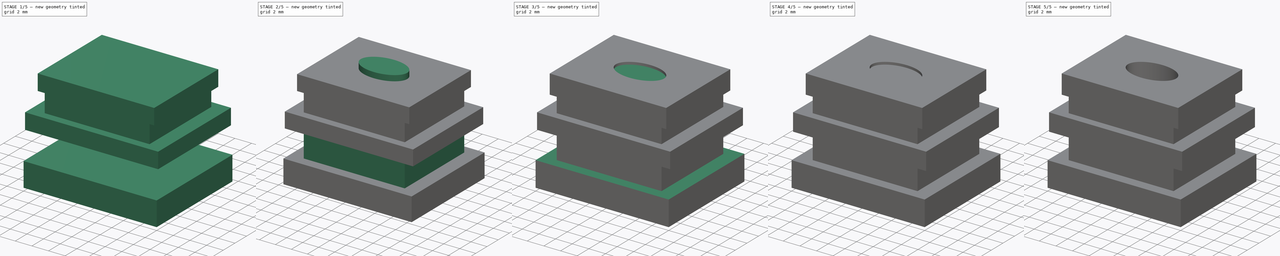
[diagram: build sequence overview — one tinted view per stage of 5, left to right]
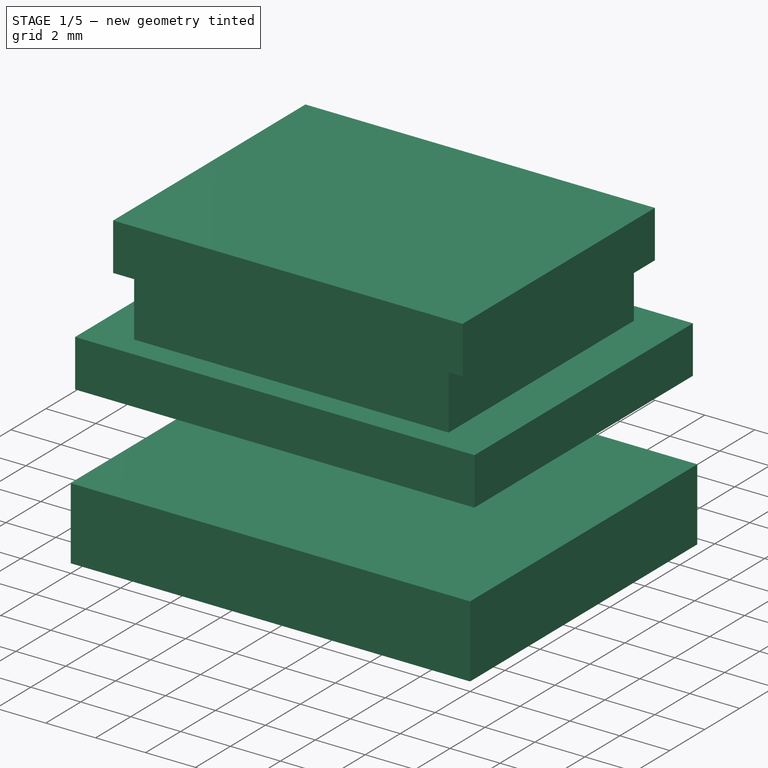
[diagram: stage 1 of 5 — iso view after this stage's code; geometry added in this stage tinted green]
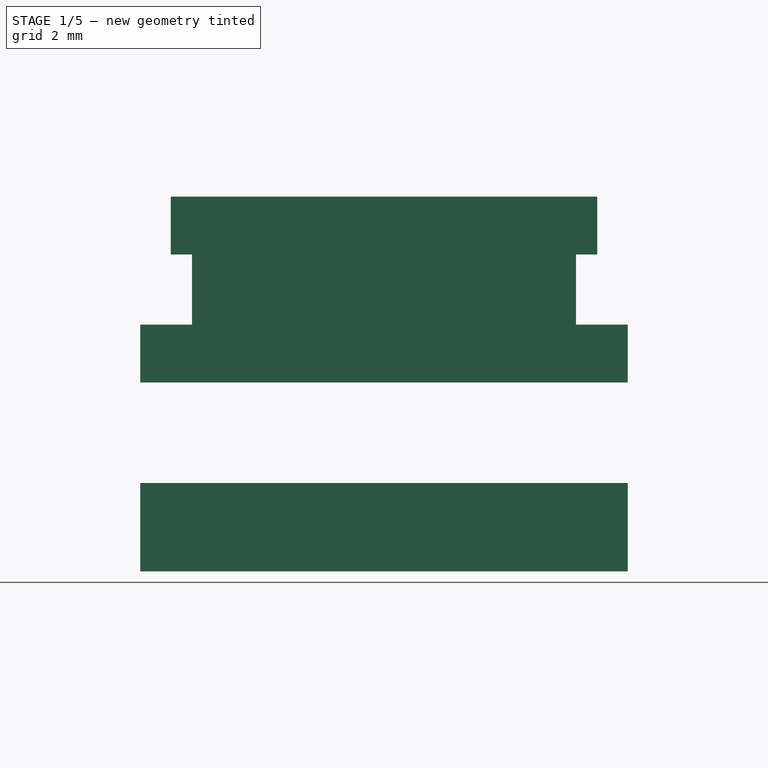
[diagram: stage 1 of 5 — front view after this stage's code; geometry added in this stage tinted green]
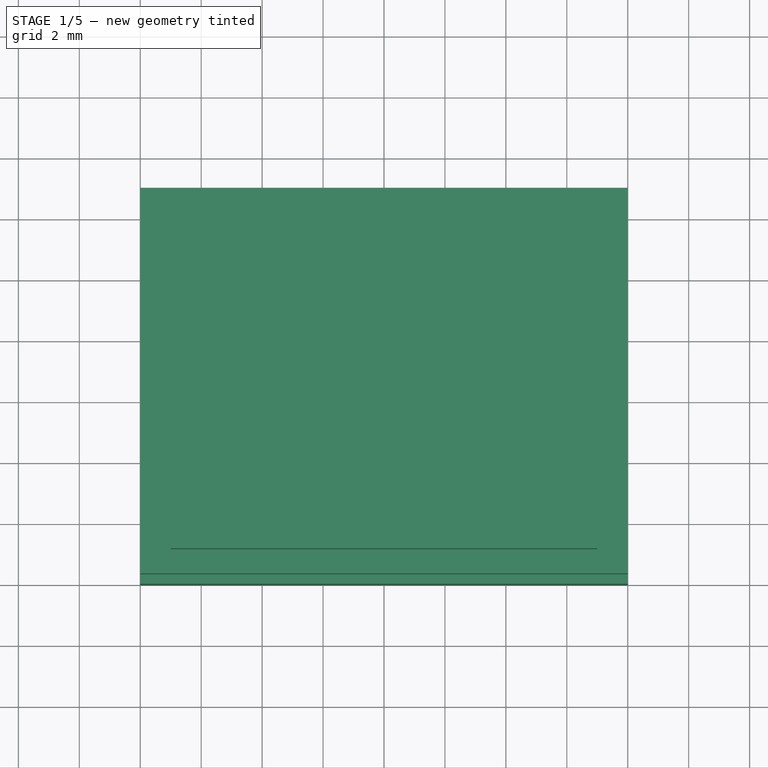
[diagram: stage 1 of 5 — top view after this stage's code; geometry added in this stage tinted green]
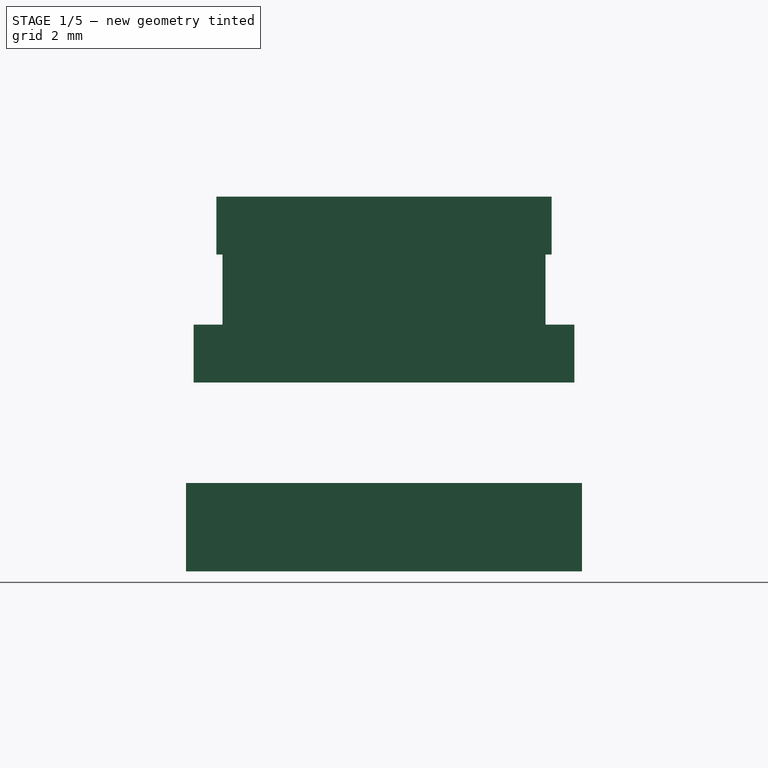
[diagram: stage 1 of 5 — right view after this stage's code; geometry added in this stage tinted green]
FCSTD DOCUMENT  (FreeCAD 0.19R0.19.2)
Label: 05
License: All rights reserved
LicenseURL: http://en.wikipedia.org/wiki/All_rights_reserved
objects: Part::Box×10, Sketcher::SketchObject×4, Part::Extrusion×2, Part::MultiFuse×2, Part::Cut×2, Part::Fillet×1, Part::Chamfer×1
note: 22 computed .brp shape members not serialized (recipe doc carries the construction recipe); baked Part::Feature solids carry a one-line shape summary decoded from their .brp

FEATURE [Part::Box] Box001  label="Cube001"
  AttacherType = Attacher::AttachEngine3D
  Height = 2.9
  Length = 16
  Width = 13
FEATURE [Part::Box] Box002  label="Cube002"
  AttacherType = Attacher::AttachEngine3D
  Height = 1.9
  Length = 16
  Placement = pos=(0,0.25,6.2) rot=(0,0,1;0rad)
  Width = 12.5
FEATURE [Part::Box] Box003  label="Cube003"
  AttacherType = Attacher::AttachEngine3D
  Height = 2.3
  Length = 12.6
  Placement = pos=(1.7,1.2,8.1) rot=(0,0,1;0rad)
  Width = 10.6
FEATURE [Part::Box] Box004  label="Cube004"
  AttacherType = Attacher::AttachEngine3D
  Height = 1.9
  Length = 14
  Placement = pos=(1,1,10.4) rot=(0,0,1;0rad)
  Width = 11
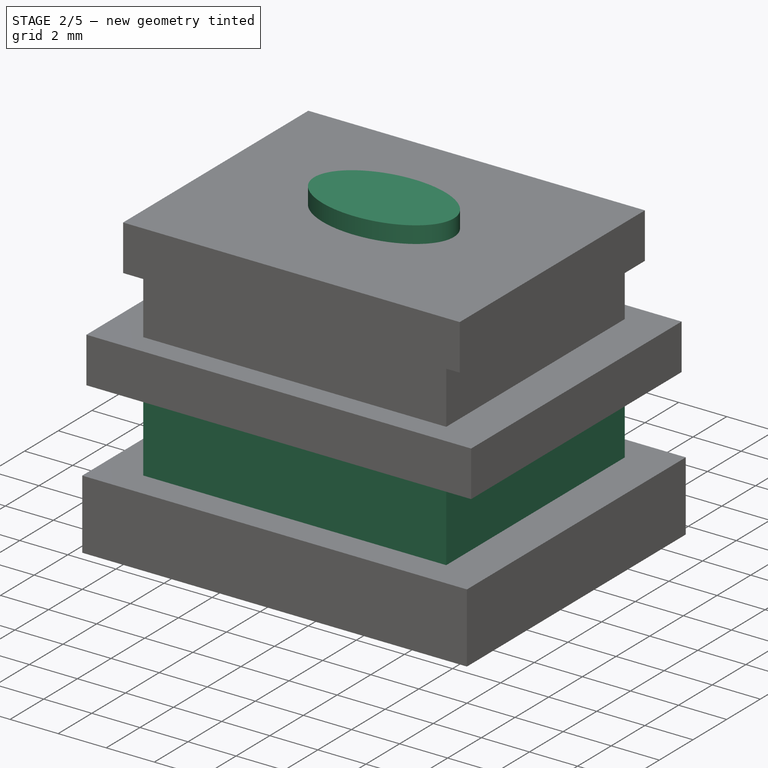
[diagram: stage 2 of 5 — iso view after this stage's code; geometry added in this stage tinted green]
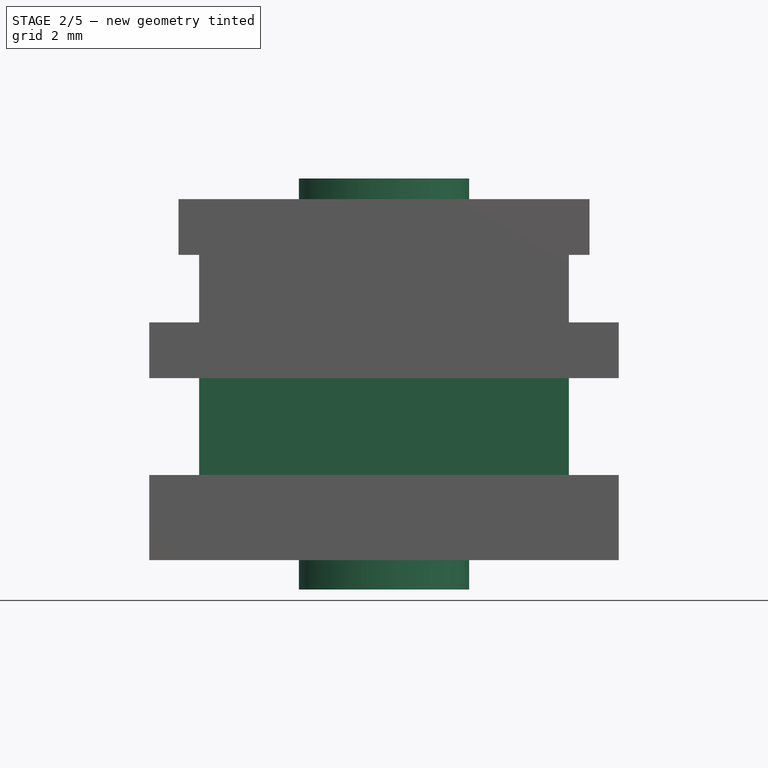
[diagram: stage 2 of 5 — front view after this stage's code; geometry added in this stage tinted green]
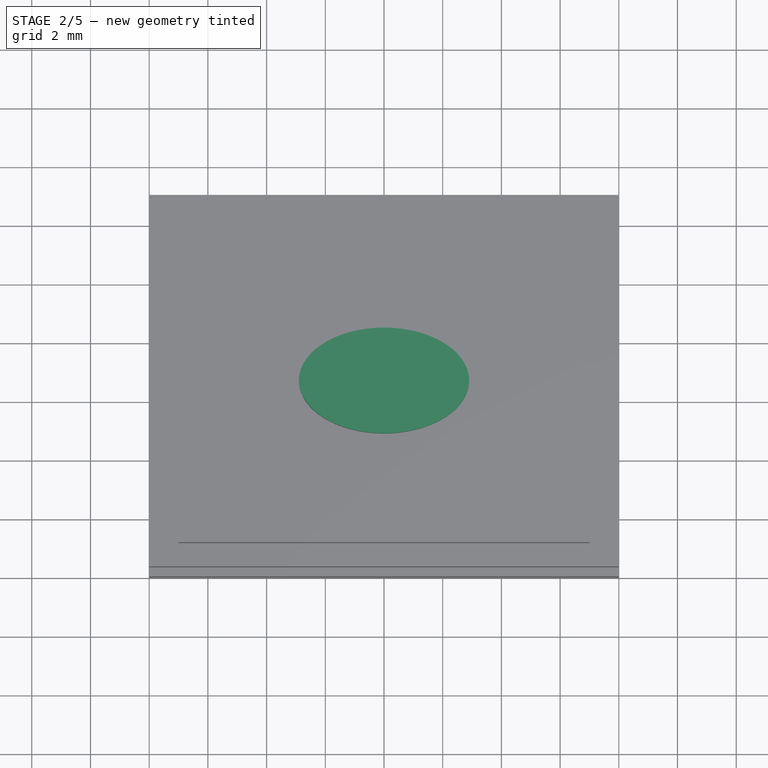
[diagram: stage 2 of 5 — top view after this stage's code; geometry added in this stage tinted green]
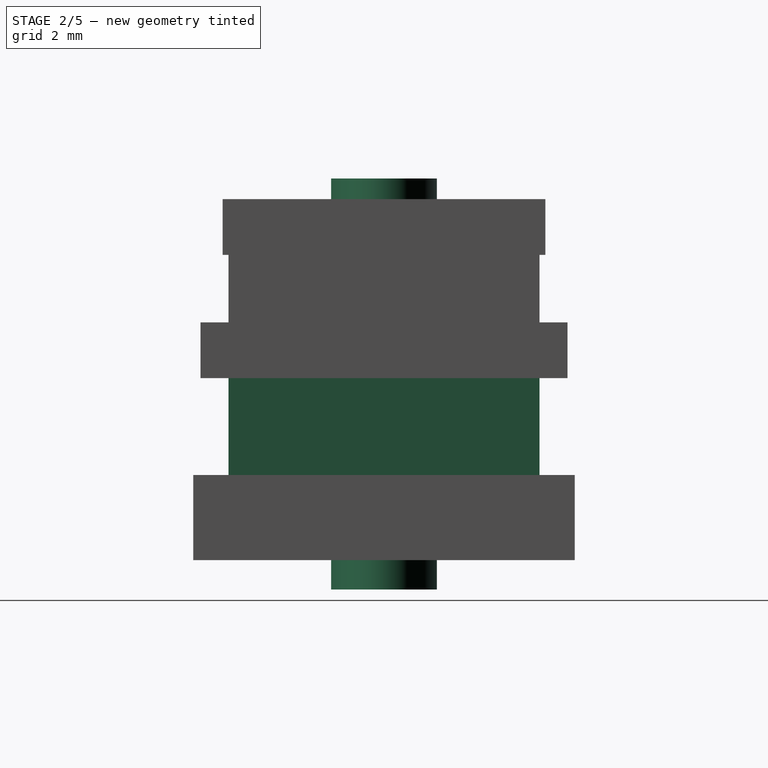
[diagram: stage 2 of 5 — right view after this stage's code; geometry added in this stage tinted green]
FEATURE [Sketcher::SketchObject] Sketch
  FullyConstrained = true
FEATURE [Part::Box] Box  label="Cube"
  AttacherType = Attacher::AttachEngine3D
  Height = 3.3
  Length = 12.6
  Placement = pos=(1.7,1.2,2.9) rot=(0,0,1;0rad)
  Width = 10.6
FEATURE [Sketcher::SketchObject] Sketch001
  FullyConstrained = true
  MapMode = 5
  Placement = pos=(0,0,12) rot=(0,0,1;0rad)
FEATURE [Sketcher::SketchObject] Sketch002
  FullyConstrained = true
  MapMode = 5
  Placement = pos=(0,0,12) rot=(0,0,1;0rad)
  sketch-geometry (5):
    g0: Ellipse CenterX=1e-16 CenterY=0 CenterZ=0 NormalX=0 NormalY=0 NormalZ=1 MajorRadius=2.9 MinorRadius=1.8 AngleXU=-3.14159
    g1: LineSegment StartX=-2.9 StartY=0 StartZ=0 EndX=2.9 EndY=0 EndZ=0
    g2: LineSegment StartX=1e-16 StartY=-1.8 StartZ=0 EndX=1e-16 EndY=1.8 EndZ=0
    g3: GeomPoint X=-2.27376 Y=0 Z=0
    g4: GeomPoint X=2.27376 Y=0 Z=0
  constraints (2):
    c: InternalAlignment(g1-g4 -> g0) x4
    c: Block(g0)
FEATURE [Part::Extrusion] Extrude
  Base = -> Sketch002
  Dir = (0,0,1)
  DirMode = 2
  FaceMakerClass = Part::FaceMakerBullseye
  LengthFwd = 14
  LengthRev = 0
  Placement = pos=(8,6.5,-13) rot=(0,0,1;0rad)
  Solid = true
  Symmetric = false
FEATURE [Part::MultiFuse] Fusion
  Shapes = -> [Box004,Box003,Box002,Box,Box001]
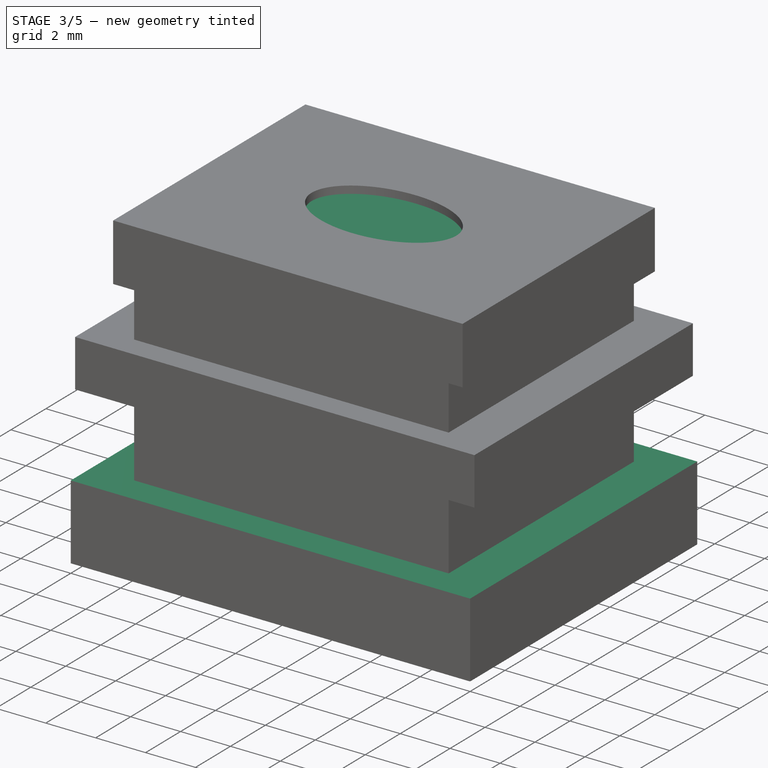
[diagram: stage 3 of 5 — iso view after this stage's code; geometry added in this stage tinted green]
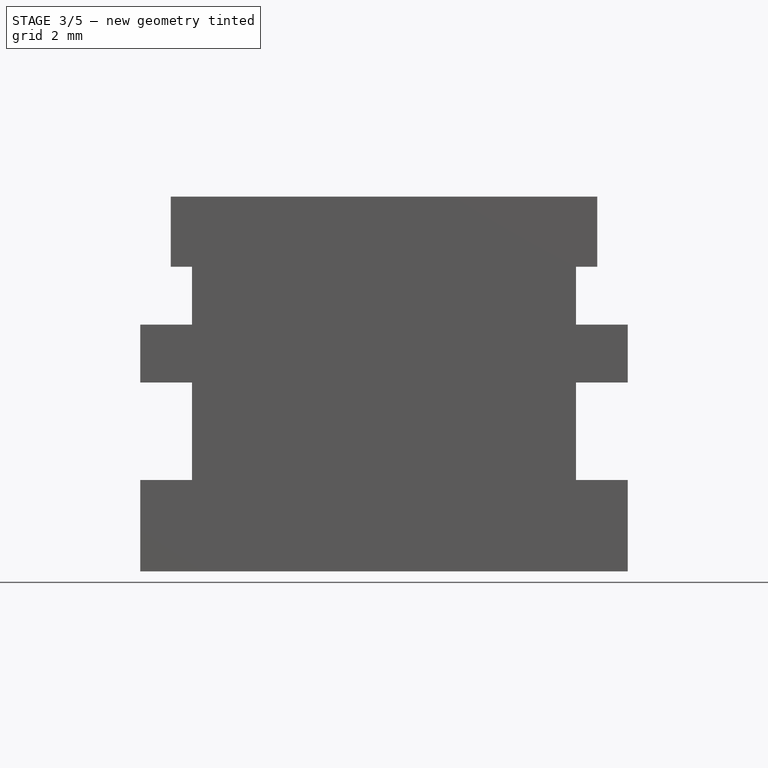
[diagram: stage 3 of 5 — front view after this stage's code; geometry added in this stage tinted green]
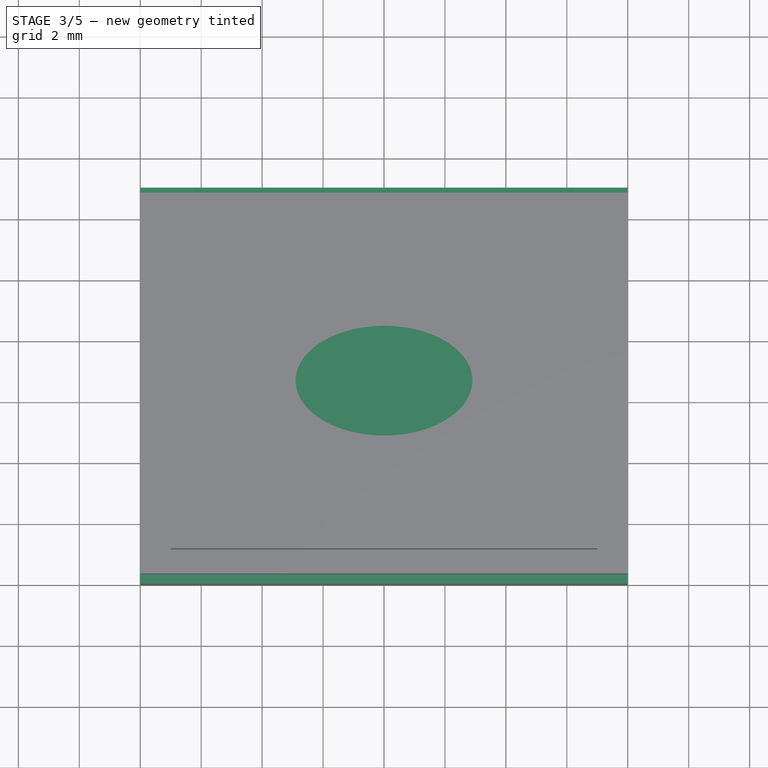
[diagram: stage 3 of 5 — top view after this stage's code; geometry added in this stage tinted green]
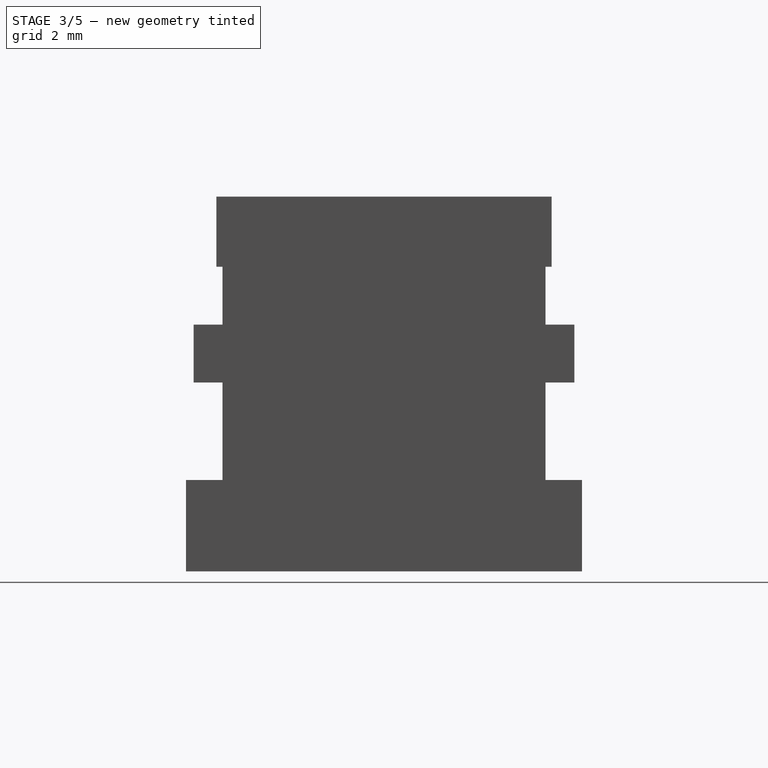
[diagram: stage 3 of 5 — right view after this stage's code; geometry added in this stage tinted green]
FEATURE [Part::Box] Box007  label="Cube007"
  AttacherType = Attacher::AttachEngine3D
  Height = 2
  Length = 12.6
  Placement = pos=(1.7,1.2,8) rot=(0,0,1;0rad)
  Width = 10.6
FEATURE [Part::Box] Box008  label="Cube008"
  AttacherType = Attacher::AttachEngine3D
  Height = 2
  Length = 14
  Placement = pos=(1,1,10) rot=(0,0,1;0rad)
  Width = 11
FEATURE [Part::Box] Box009  label="Cube009"
  AttacherType = Attacher::AttachEngine3D
  Height = 3
  Length = 16
  Width = 13
FEATURE [Part::Cut] Cut
  Base = -> Fusion
  Tool = -> Extrude
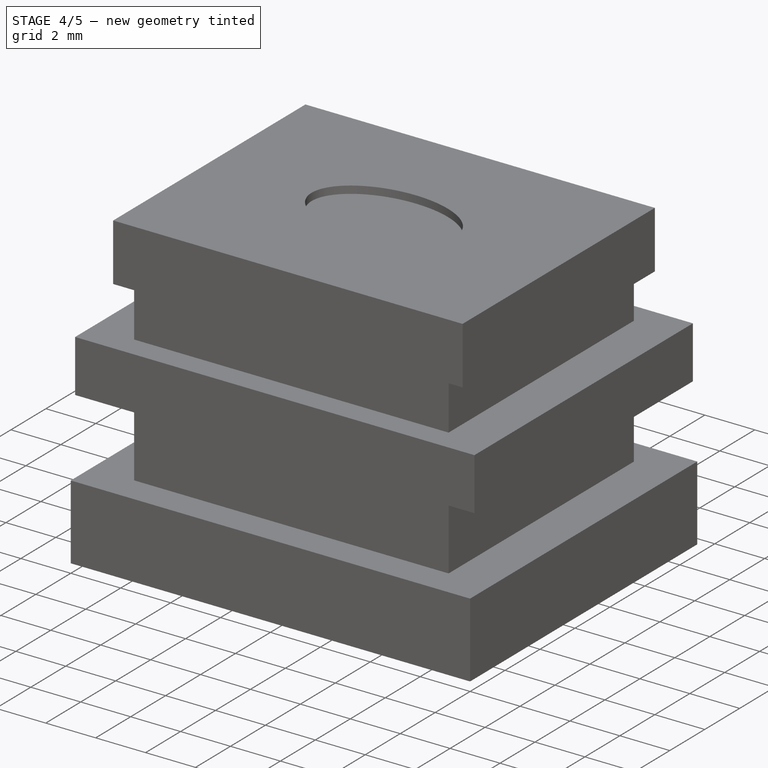
[diagram: stage 4 of 5 — iso view after this stage's code; geometry added in this stage tinted green]
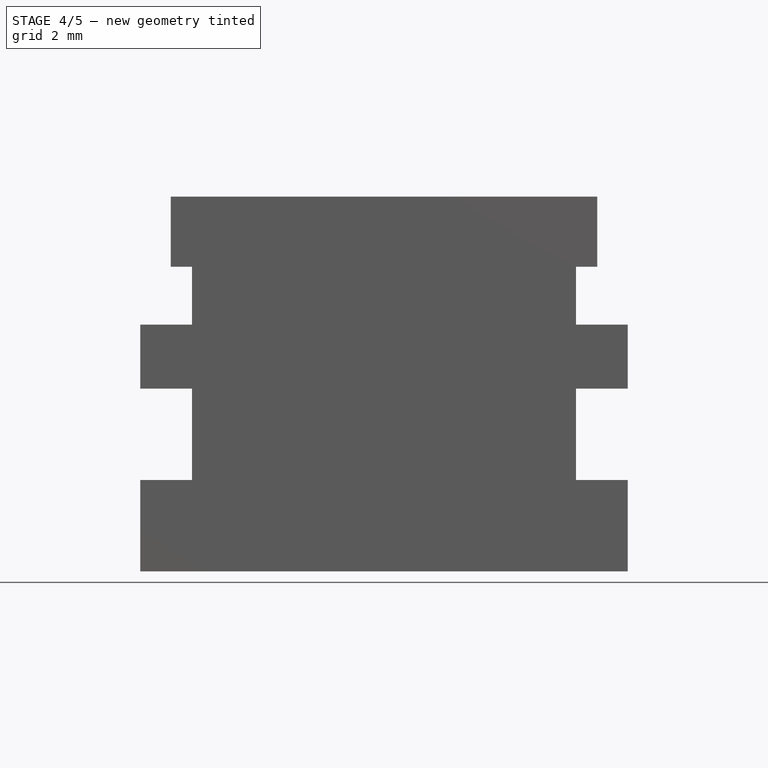
[diagram: stage 4 of 5 — front view after this stage's code; geometry added in this stage tinted green]
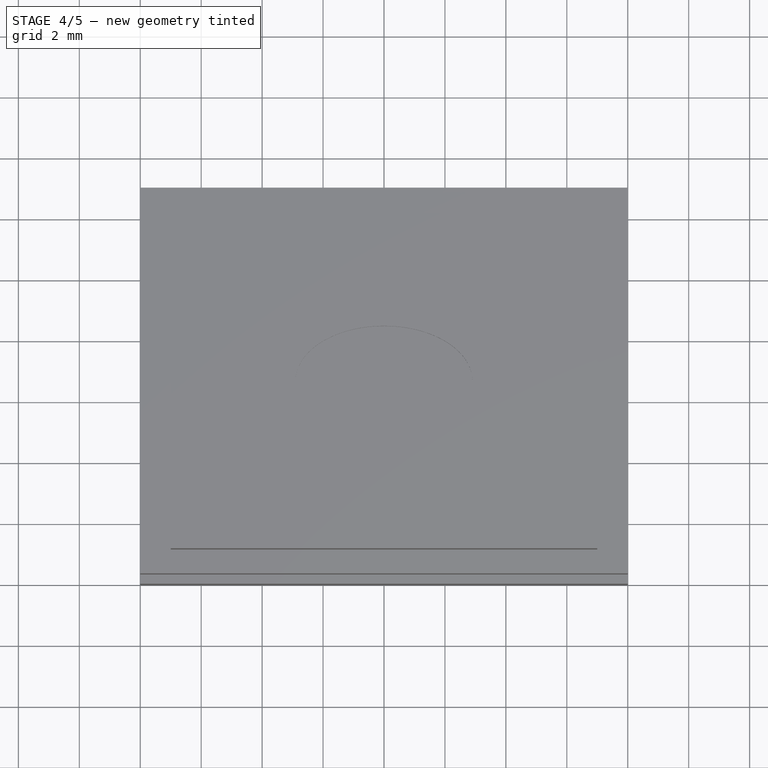
[diagram: stage 4 of 5 — top view after this stage's code; geometry added in this stage tinted green]
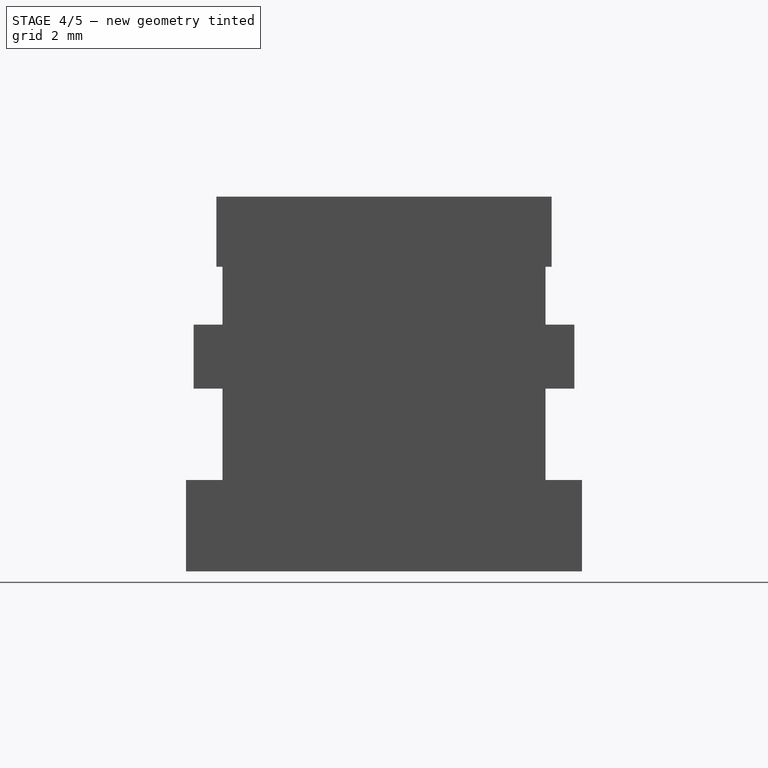
[diagram: stage 4 of 5 — right view after this stage's code; geometry added in this stage tinted green]
FEATURE [Part::Box] Box005  label="Cube005"
  AttacherType = Attacher::AttachEngine3D
  Height = 3
  Length = 12.6
  Placement = pos=(1.7,1.2,3) rot=(0,0,1;0rad)
  Width = 10.6
FEATURE [Part::Box] Box006  label="Cube006"
  AttacherType = Attacher::AttachEngine3D
  Height = 2
  Length = 16
  Placement = pos=(0,0.25,6) rot=(0,0,1;0rad)
  Width = 12.5
FEATURE [Part::MultiFuse] Fusion001
  Shapes = -> [Box008,Box007,Box006,Box005,Box009]
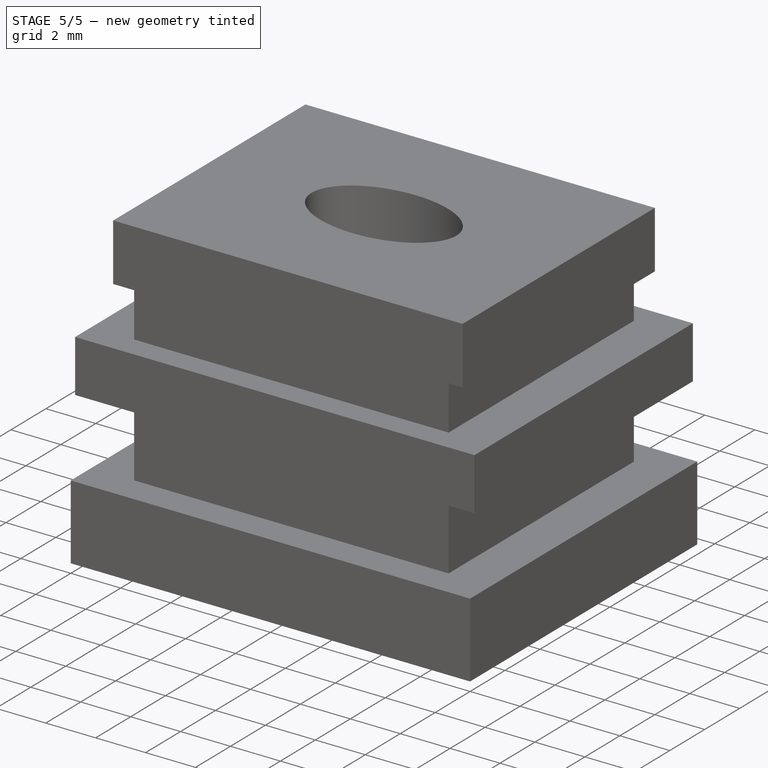
[diagram: stage 5 of 5 — iso view after this stage's code; geometry added in this stage tinted green]
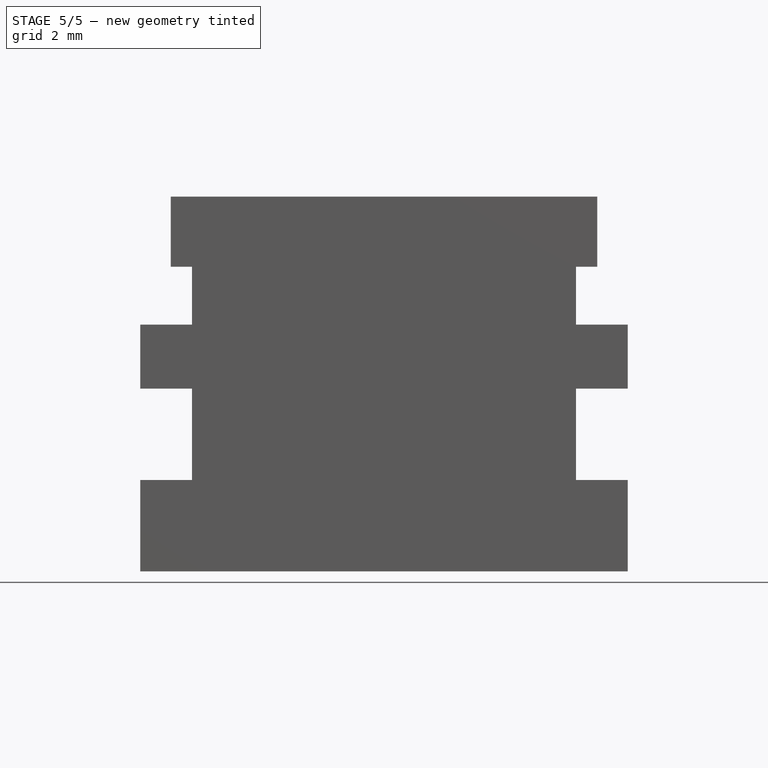
[diagram: stage 5 of 5 — front view after this stage's code; geometry added in this stage tinted green]
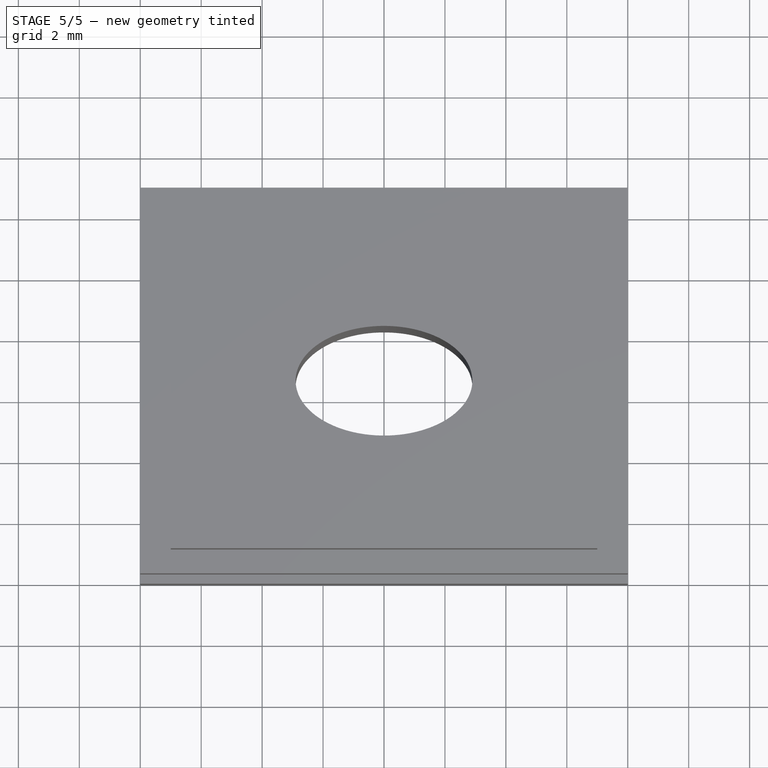
[diagram: stage 5 of 5 — top view after this stage's code; geometry added in this stage tinted green]
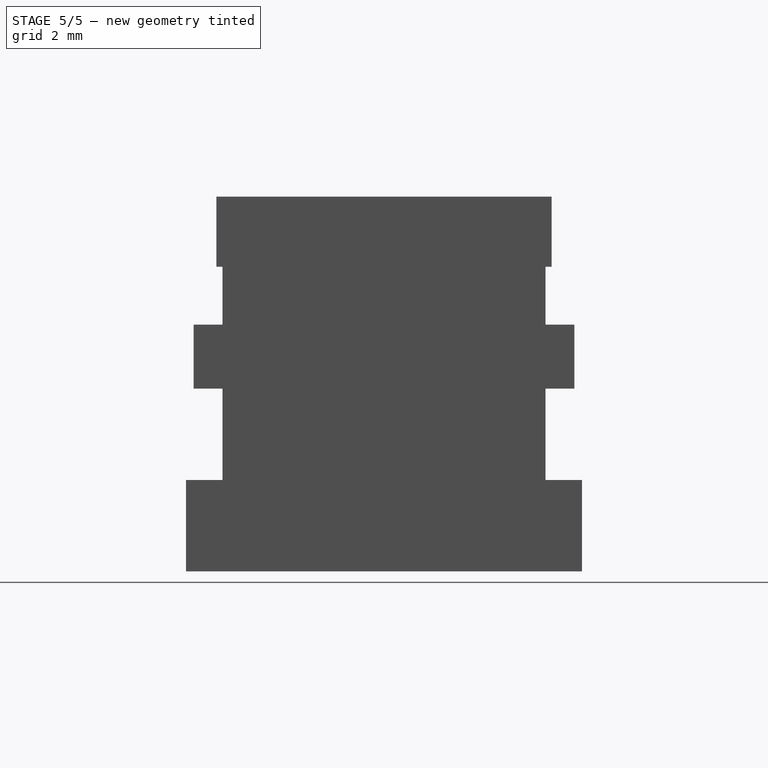
[diagram: stage 5 of 5 — right view after this stage's code; geometry added in this stage tinted green]
FEATURE [Sketcher::SketchObject] Sketch003
  FullyConstrained = true
  MapMode = 5
  Placement = pos=(0,0,12) rot=(0,0,1;0rad)
  Support = -> [Fusion001]
  sketch-geometry (5):
    g0: Ellipse CenterX=1e-16 CenterY=0 CenterZ=0 NormalX=0 NormalY=0 NormalZ=1 MajorRadius=2.9 MinorRadius=1.8 AngleXU=-3.14159
    g1: LineSegment StartX=-2.9 StartY=0 StartZ=0 EndX=2.9 EndY=0 EndZ=0
    g2: LineSegment StartX=1e-16 StartY=-1.8 StartZ=0 EndX=1e-16 EndY=1.8 EndZ=0
    g3: GeomPoint X=-2.27376 Y=0 Z=0
    g4: GeomPoint X=2.27376 Y=0 Z=0
  constraints (2):
    c: InternalAlignment(g1-g4 -> g0) x4
    c: Block(g0)
FEATURE [Part::Extrusion] Extrude001
  Base = -> Sketch003
  Dir = (0,0,1)
  DirMode = 2
  FaceMakerClass = Part::FaceMakerBullseye
  LengthFwd = 14
  LengthRev = 0
  Placement = pos=(8,6.5,-13) rot=(0,0,1;0rad)
  Solid = true
  Symmetric = false
FEATURE [Part::Cut] Cut001
  Base = -> Fusion001
  Tool = -> Extrude001
FEATURE [Part::Fillet] Fillet003
  Base = -> Cut001
  Edges = 1 edges r=3.2: [Edge10]
FEATURE [Part::Chamfer] Chamfer001
  Base = -> Fillet003
  Edges = 1 edges r=3: [Edge17]
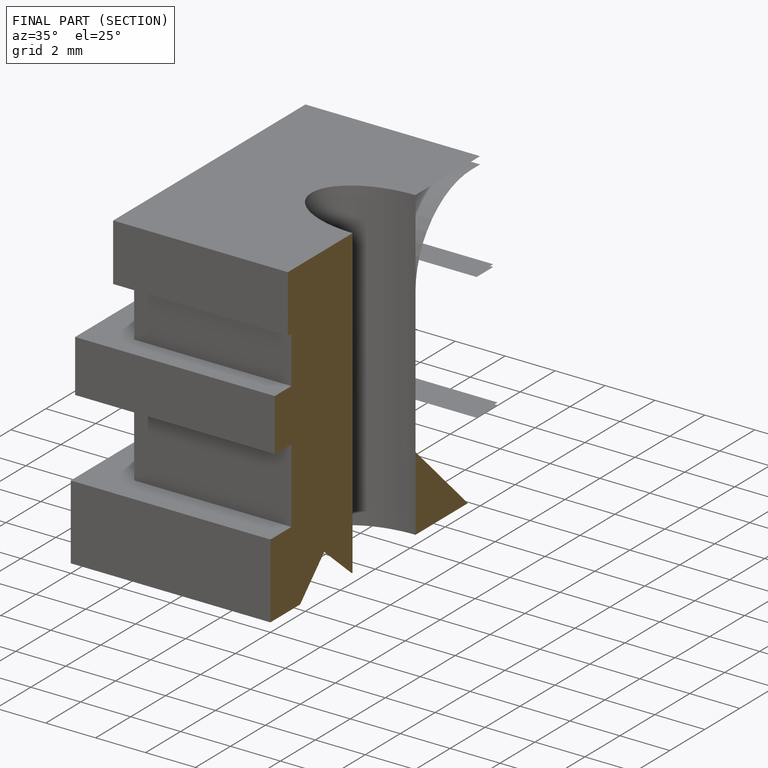
[diagram: finished part — half-section view (interior)]
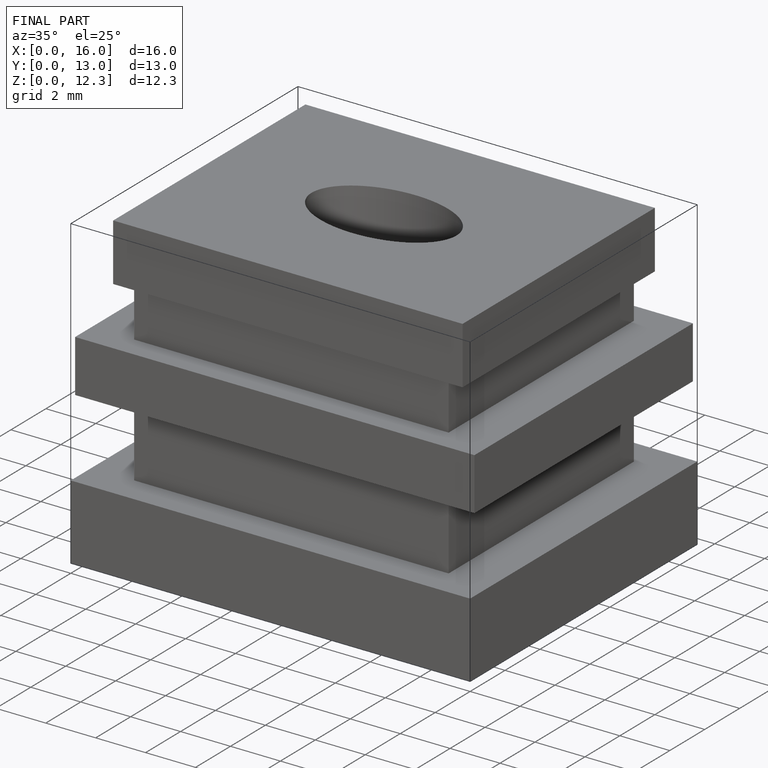
[diagram: finished part — iso view with bounding-box wireframe]
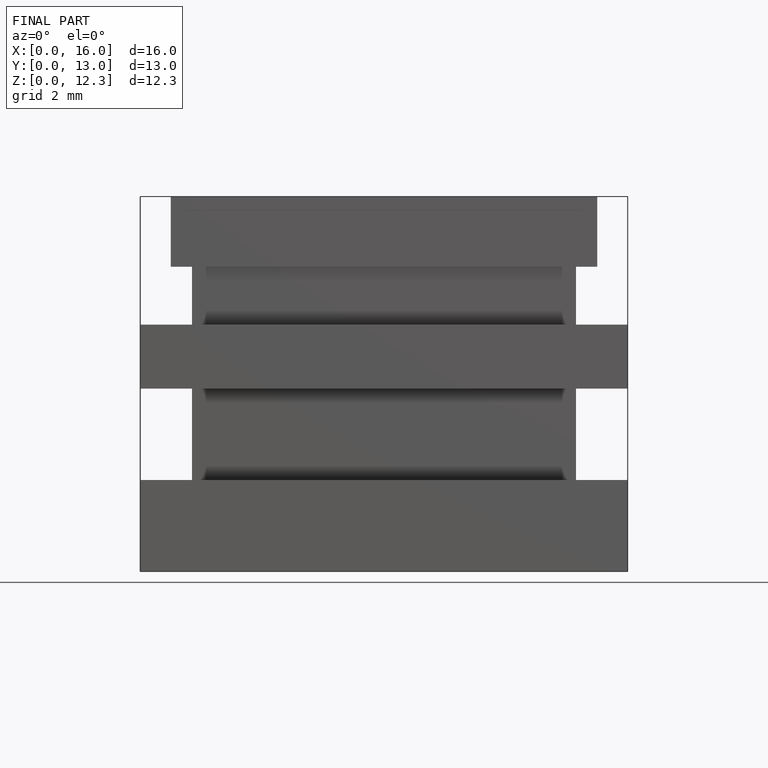
[diagram: finished part — front view with bounding-box wireframe]
